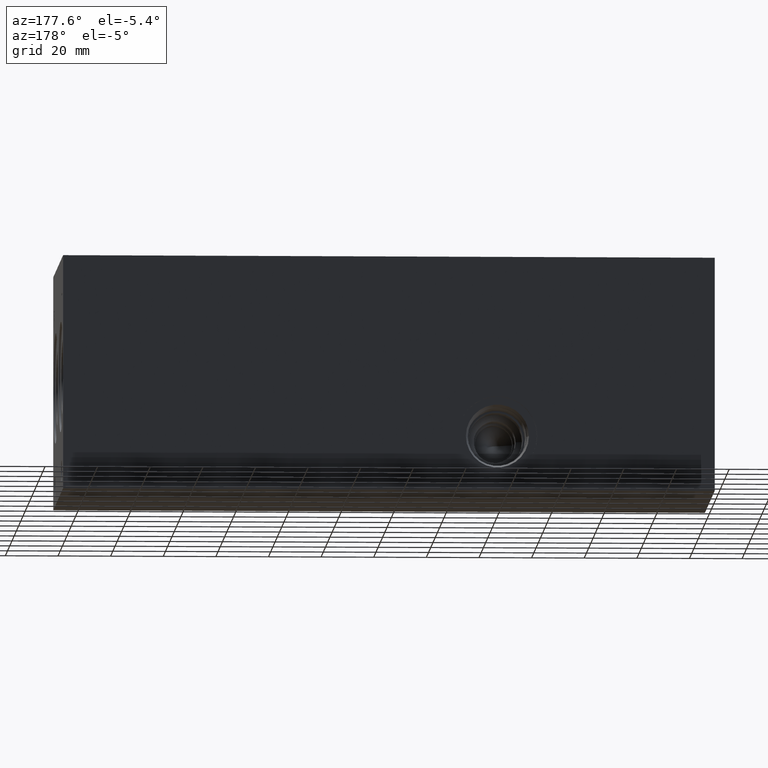
[diagram: clean part render]
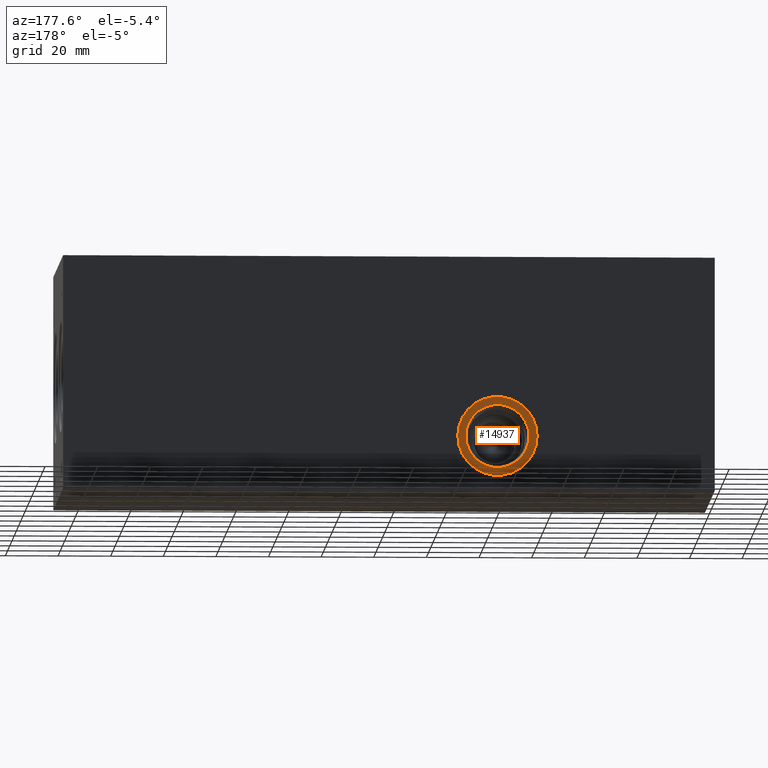
[diagram: same view with one face highlighted and labeled with its STEP entity id]
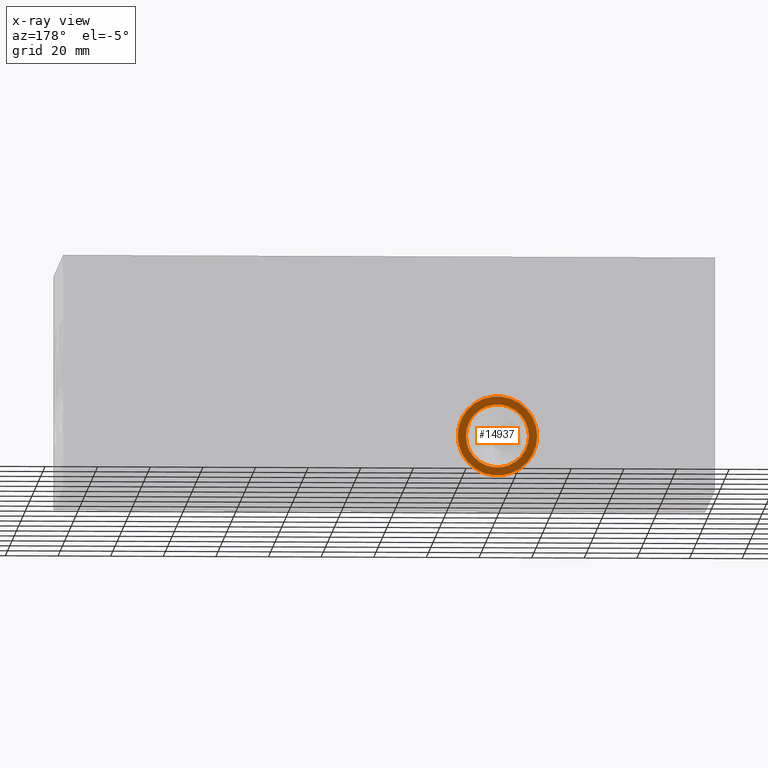
[diagram: x-ray of the same camera — body ghosted, the highlighted face saturated]
A machine part, auxiliary view. The second image highlights one B-rep face of the part: STEP entity #14937.
The next image is the same camera in x-ray: the body ghosted, the highlighted face saturated — about 0% of this face is hidden behind the body in this view.
In plain terms, the highlighted planar face has unit normal (0, -1, 0).
Its self-contained STEP definition (entity closure, byte-faithful):
#431=CIRCLE('',#15565,15.08);
#432=CIRCLE('',#15566,15.08);
#433=CIRCLE('',#15568,12.);
#434=CIRCLE('',#15569,12.);
#1270=FACE_BOUND('',#2745,.T.);
#1893=FACE_OUTER_BOUND('',#2744,.T.);
#2744=EDGE_LOOP('',(#12281,#12282));
#2745=EDGE_LOOP('',(#12283,#12284));
#6700=VERTEX_POINT('',#25239);
#6701=VERTEX_POINT('',#25241);
#6702=VERTEX_POINT('',#25245);
#6703=VERTEX_POINT('',#25246);
#8668=EDGE_CURVE('',#6700,#6701,#431,.T.);
#8669=EDGE_CURVE('',#6701,#6700,#432,.T.);
#8670=EDGE_CURVE('',#6702,#6703,#433,.T.);
#8671=EDGE_CURVE('',#6703,#6702,#434,.T.);
#12281=ORIENTED_EDGE('',*,*,#8669,.F.);
#12282=ORIENTED_EDGE('',*,*,#8668,.F.);
#12283=ORIENTED_EDGE('',*,*,#8670,.T.);
#12284=ORIENTED_EDGE('',*,*,#8671,.T.);
#13794=PLANE('',#15567);
#14937=ADVANCED_FACE('',(#1893,#1270),#13794,.F.);
#15565=AXIS2_PLACEMENT_3D('',#25242,#18058,#18059);
#15566=AXIS2_PLACEMENT_3D('',#25243,#18060,#18061);
#15567=AXIS2_PLACEMENT_3D('',#25244,#18062,#18063);
#15568=AXIS2_PLACEMENT_3D('',#25247,#18064,#18065);
#15569=AXIS2_PLACEMENT_3D('',#25248,#18066,#18067);
#18058=DIRECTION('center_axis',(0.,-1.,0.));
#18059=DIRECTION('ref_axis',(1.,0.,0.));
#18060=DIRECTION('center_axis',(0.,-1.,0.));
#18061=DIRECTION('ref_axis',(1.,0.,0.));
#18062=DIRECTION('center_axis',(0.,-1.,0.));
#18063=DIRECTION('ref_axis',(0.,0.,-1.));
#18064=DIRECTION('center_axis',(0.,-1.,0.));
#18065=DIRECTION('ref_axis',(1.,0.,0.));
#18066=DIRECTION('center_axis',(0.,-1.,0.));
#18067=DIRECTION('ref_axis',(1.,0.,0.));
#25239=CARTESIAN_POINT('',(67.47,88.11,20.6502));
#25241=CARTESIAN_POINT('',(97.63,88.11,20.6502));
#25242=CARTESIAN_POINT('Origin',(82.55,88.11,20.6502));
#25243=CARTESIAN_POINT('Origin',(82.55,88.11,20.6502));
#25244=CARTESIAN_POINT('Origin',(94.55,88.11,20.6502));
#25245=CARTESIAN_POINT('',(94.55,88.11,20.6502));
#25246=CARTESIAN_POINT('',(70.55,88.11,20.6502));
#25247=CARTESIAN_POINT('Origin',(82.55,88.11,20.6502));
#25248=CARTESIAN_POINT('Origin',(82.55,88.11,20.6502));